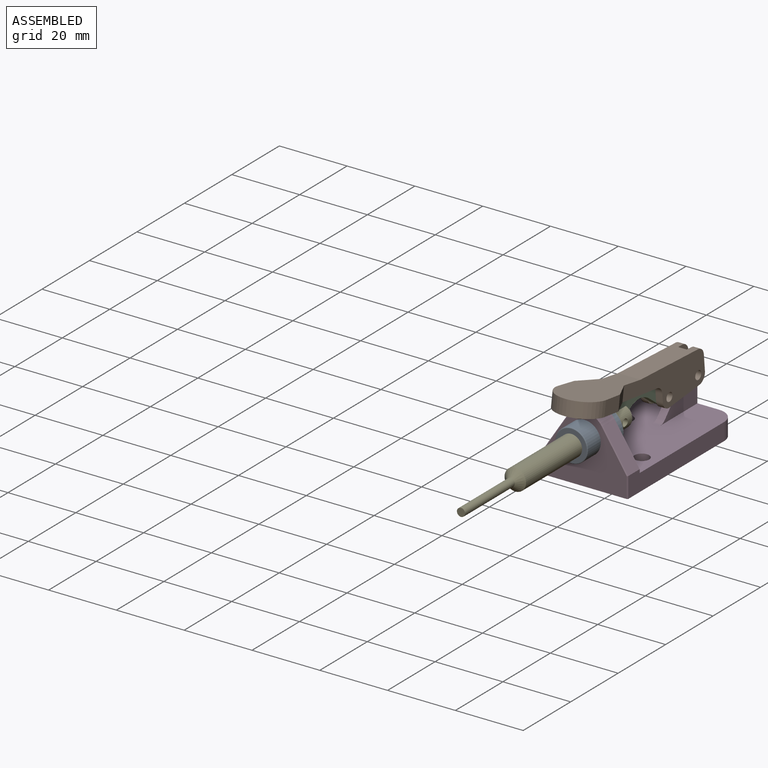
[diagram: assembled view]
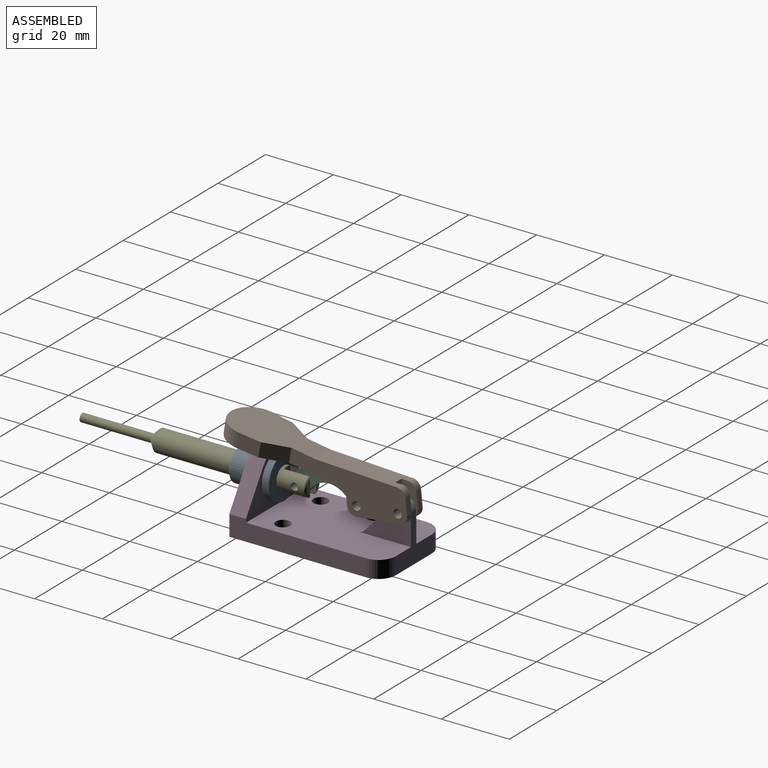
[diagram: assembled view, second angle]
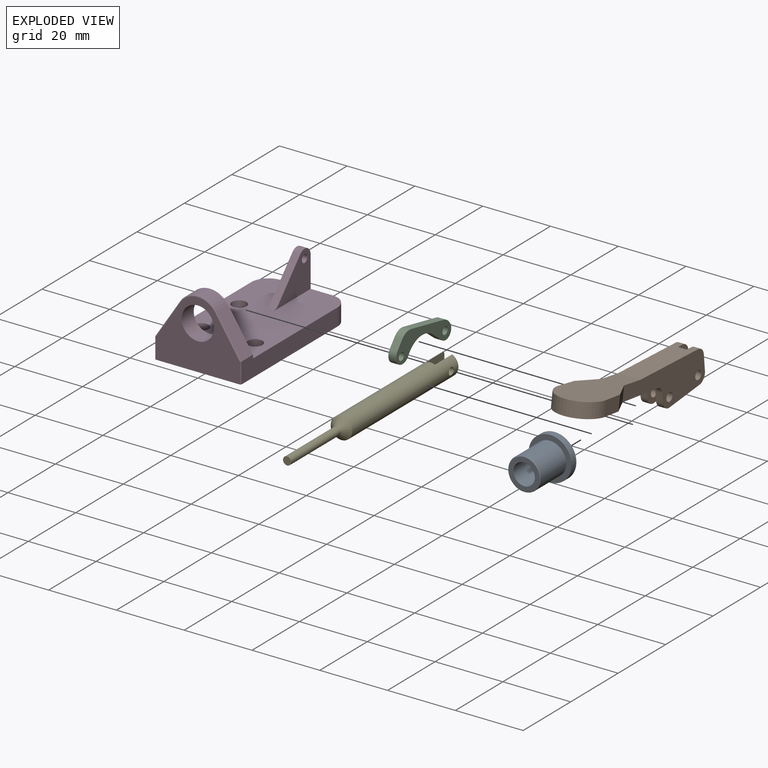
[diagram: exploded view]
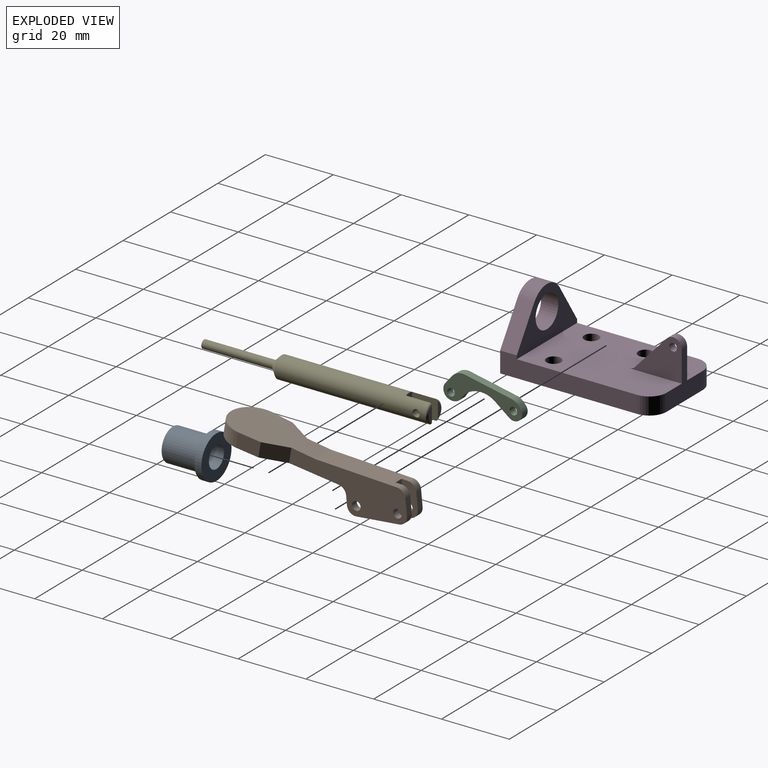
[diagram: exploded view, second angle]
ASSEMBLY  parts=5 mates=8
PART A: 7 faces, bbox 12.7x13x12.7 mm
  f0: cylinder r=3.17mm len=12.95mm, axis (0,1,0), area 258.4mm2, adj f2,f5
  f1: cylinder r=6.35mm len=12.7mm, axis (0,1,0), area 81.1mm2, adj f2,f3
  f2: plane 12.7x12.7mm, normal (0,-1,0), area 95mm2, adj f0,f1
  f3: plane 12.7x12.7mm, normal (0,1,0), area 54.7mm2, adj f1,f4
  f4: cylinder r=4.79mm len=10.67mm, axis (0,-1,0), area 320.9mm2, adj f3,f6
  f5: plane 9.07x9.07mm, normal (0,1,0), area 32.9mm2, adj f0,f6
  f6: torus R=4.53mm, axis (0,1,0), area 11.8mm2, adj f4,f5
PART B: 34 faces, bbox 14.2x53.8x20.2 mm
  f0: plane 12.7x2.03mm, normal (0,0,-1), area 25.8mm2, adj f3,f13,f27,f29
  f1: plane 2.55x2.03mm, normal (0,1,0), area 5.2mm2, adj f2,f3,f27,f29
  f2: cylinder r=2.54mm len=2.48mm, axis (-1,0,0), area 7mm2, adj f1,f15,f27,f29
  f3: cylinder r=2.54mm len=2.54mm, axis (-1,0,0), area 8.1mm2, adj f0,f1,f27,f29
  f4: plane 4.15x2.54mm, normal (0,-1,0), area 10.6mm2, adj f8,f29,f30,f33
  f5: cylinder r=1.27mm len=2.54mm, axis (1,0,0), area 16.2mm2, adj f27,f29
  f6: cylinder r=1.27mm len=2.54mm, axis (1,0,0), area 16.2mm2, adj f27,f29
  f7: plane 12.7x2.03mm, normal (0,0,-1), area 25.8mm2, adj f14,f19,f24,f30
  f8: plane 23.88x6.6mm, normal (0,-0.14,0.99), area 154.5mm2, adj f4,f9,f10,f18,f24,f27,f29,f30
  f9: cylinder r=2.54mm len=2.51mm, axis (-1,0,0), area 7.4mm2, adj f8,f11,f27,f29
  f10: cylinder r=2.54mm len=2.51mm, axis (-1,0,0), area 7.4mm2, adj f8,f12,f24,f30
  f11: plane 4.66x2.03mm, normal (0,-1,0), area 9.5mm2, adj f9,f13,f27,f29
  f12: plane 4.66x2.03mm, normal (0,-1,0), area 9.5mm2, adj f10,f14,f24,f30
  f13: cylinder r=2.54mm len=2.54mm, axis (-1,0,0), area 8.1mm2, adj f0,f11,f27,f29
  f14: cylinder r=2.54mm len=2.54mm, axis (-1,0,0), area 8.1mm2, adj f7,f12,f24,f30
  f15: plane 14.86x7.13mm, normal (0,0.22,-0.98), area 83.6mm2, adj f2,f17,f20,f23,f24,f27,f28,f29
  f16: plane 2.55x2.03mm, normal (0,1,0), area 5.2mm2, adj f17,f19,f24,f30
  f17: cylinder r=2.54mm len=2.48mm, axis (-1,0,0), area 7mm2, adj f15,f16,f24,f30
  f18: cylinder r=2.54mm len=6.6mm, axis (-1,0,0), area 1.9mm2, adj f8,f21,f24,f27
  f19: cylinder r=2.54mm len=2.54mm, axis (-1,0,0), area 8.1mm2, adj f7,f16,f24,f30
  f20: plane 19.16x14.22mm, normal (0,0.25,-0.97), area 233.8mm2, adj f15,f22,f23,f25,f26,f28
  f21: plane 26.34x14.22mm, normal (0,-0.25,0.97), area 283mm2, adj f18,f22,f23,f24,f25,f26,f27,f28
  f22: cylinder r=7.11mm len=14.22mm, axis (0,-0.25,0.97), area 96.5mm2, adj f20,f21,f25,f26
  f23: plane 7.58x5.86mm, normal (0.89,-0.44,-0.12), area 32.6mm2, adj f15,f20,f21,f24,f25
  f24: plane 34.12x14.99mm, normal (1,0,0), area 246.6mm2, adj f7,f8,f10,f12,f14,f15,f16,f17
  f25: plane 7.39x5.83mm, normal (1,-0.05,-0.01), area 28.1mm2, adj f20,f21,f22,f23
  f26: plane 7.39x5.83mm, normal (-1,-0.05,-0.01), area 28.1mm2, adj f20,f21,f22,f28
  f27: plane 34.12x14.99mm, normal (-1,0,0), area 246.6mm2, adj f0,f1,f2,f3,f5,f6,f8,f9
  f28: plane 7.58x5.86mm, normal (-0.89,-0.44,-0.12), area 32.6mm2, adj f15,f20,f21,f26,f27
  f29: plane 26.37x9.99mm, normal (1,0,0), area 123mm2, adj f0,f1,f2,f3,f4,f5,f6,f8
  f30: plane 26.37x9.99mm, normal (-1,0,0), area 123mm2, adj f4,f7,f8,f10,f12,f14,f15,f16
  f31: cylinder r=1.27mm len=2.54mm, axis (1,0,0), area 16.2mm2, adj f24,f30
  f32: cylinder r=1.27mm len=2.54mm, axis (1,0,0), area 16.2mm2, adj f24,f30
  f33: plane 22.31x3.23mm, normal (0,0.14,-0.99), area 57.3mm2, adj f4,f15,f29,f30
PART C: 14 faces, bbox 23.3x2.3x8.5 mm
  f0: cylinder r=3.81mm len=3.68mm, axis (0,1,0), area 9.4mm2, adj f1,f10,f11,f12
  f1: plane 2.48x2.29mm, normal (-0.77,0,0.64), area 7.3mm2, adj f0,f11,f12,f13
  f2: cylinder r=3.17mm len=3.2mm, axis (0,1,0), area 7.8mm2, adj f3,f11,f12,f13
  f3: cylinder r=6.97mm len=10.62mm, axis (0,1,0), area 28.4mm2, adj f2,f4,f11,f12
  f4: plane 3.93x3.01mm, normal (-0.61,0,-0.79), area 11.3mm2, adj f3,f5,f11,f12
  f5: cylinder r=2.39mm len=3.85mm, axis (0,1,0), area 15.3mm2, adj f4,f6,f11,f12
  f6: plane 2.29x0.78mm, normal (0.75,0,0.66), area 2.3mm2, adj f5,f7,f11,f12
  f7: cylinder r=3.81mm len=2.29mm, axis (0,1,0), area 5.8mm2, adj f6,f10,f11,f12
  f8: cylinder r=1.12mm len=2.29mm, axis (0,1,0), area 16.1mm2, adj f11,f12
  f9: cylinder r=1.12mm len=2.29mm, axis (0,1,0), area 16.1mm2, adj f11,f12
  f10: plane 13.79x2.72mm, normal (0.19,0,0.98), area 32.1mm2, adj f0,f7,f11,f12
  f11: plane 23.29x8.5mm, normal (0,-1,0), area 90.8mm2, adj f0,f1,f2,f3,f4,f5,f6,f7
  f12: plane 23.29x8.5mm, normal (0,1,0), area 90.8mm2, adj f0,f1,f2,f3,f4,f5,f6,f7
  f13: cylinder r=2.54mm len=4.01mm, axis (0,1,0), area 11.2mm2, adj f1,f2,f11,f12
PART D: 27 faces, bbox 25.4x45.7x20.3 mm
  f0: plane 40.39x6.1mm, normal (-1,0,0), area 210.1mm2, adj f2,f3,f6,f8,f15,f19
  f1: plane 24.89x20.07mm, normal (0,-1,0), area 296.1mm2, adj f3,f5,f8,f16,f24,f25,f26
  f2: plane 25.4x15.24mm, normal (0,1,0), area 180.1mm2, adj f0,f4,f6,f16,f17,f18,f19
  f3: plane 6.1x0.25mm, normal (-0.71,-0.71,0), area 2.2mm2, adj f0,f1,f8,f26
  f4: plane 40.39x6.1mm, normal (1,0,0), area 210.1mm2, adj f2,f5,f6,f8,f14,f17
  f5: plane 6.1x0.25mm, normal (0.71,-0.71,0), area 2.2mm2, adj f1,f4,f8,f24
  f6: plane 40.64x25.4mm, normal (0,0,1), area 941.6mm2, adj f0,f2,f4,f7,f11,f12,f13,f14
  f7: plane 15.24x14.22mm, normal (0,1,0), area 98.3mm2, adj f6,f8,f10,f11,f12,f14,f15
  f8: plane 45.72x25.4mm, normal (0,0,-1), area 1106.2mm2, adj f0,f1,f3,f4,f5,f7,f14,f15
  f9: plane 10.06x9.32mm, normal (0,-0.73,0.68), area 31.3mm2, adj f10,f11,f12,f13
  f10: cylinder r=2.54mm len=4.4mm, axis (-1,0,0), area 13.9mm2, adj f7,f9,f11,f12
  f11: plane 15.59x11.68mm, normal (1,0,0), area 100.4mm2, adj f6,f7,f9,f10,f13,f23
  f12: plane 15.59x11.68mm, normal (-1,0,0), area 100.4mm2, adj f6,f7,f9,f10,f13,f23
  f13: cylinder r=2.54mm len=2.29mm, axis (-1,0,0), area 4.8mm2, adj f6,f9,f11,f12
  f14: cylinder r=5.08mm len=5.08mm, axis (0,0,-1), area 40.5mm2, adj f4,f6,f7,f8
  f15: cylinder r=5.08mm len=5.08mm, axis (0,0,1), area 40.5mm2, adj f0,f6,f7,f8
  f16: cylinder r=4.78mm len=9.55mm, axis (0,1,0), area 152.4mm2, adj f1,f2
  f17: plane 11.45x7.45mm, normal (0.84,0,0.55), area 65.9mm2, adj f2,f4,f18,f24
  f18: cylinder r=6.35mm len=10.64mm, axis (0,1,0), area 60.9mm2, adj f2,f17,f19,f25
  f19: plane 11.23x7.31mm, normal (-0.84,0,0.55), area 64.7mm2, adj f0,f2,f18,f26
  f20: cylinder r=2.16mm len=5.08mm, axis (0,0,1), area 68.9mm2, adj f6,f8
  f21: cylinder r=2.16mm len=5.08mm, axis (0,0,1), area 68.9mm2, adj f6,f8
  f22: cylinder r=2.16mm len=5.08mm, axis (0,0,1), area 68.9mm2, adj f6,f8
  f23: cylinder r=1.14mm len=2.29mm, axis (-1,0,0), area 16.4mm2, adj f11,f12
  f24: plane 11.52x7.66mm, normal (0.59,-0.71,0.39), area 4.9mm2, adj f1,f5,f17,f25
  f25: cone r=6.1mm half-angle=45deg, axis (0,1,0), area 4.4mm2, adj f1,f18,f24,f26
  f26: plane 11.3x7.52mm, normal (-0.59,-0.71,0.39), area 4.8mm2, adj f1,f3,f19,f25
PART E: 13 faces, bbox 6.9x68.1x6.4 mm
  f0: plane 4.4x1.27mm, normal (0,-1,0), area 4mm2, adj f3,f10
  f1: cylinder r=3.17mm len=44.55mm, axis (0,-1,0), area 844.8mm2, adj f2,f3,f7,f8,f9,f10,f11,f12
  f2: torus R=2.54mm, axis (0,1,0), area 6.6mm2, adj f1,f4,f9
  f3: torus R=2.54mm, axis (0,1,0), area 6.6mm2, adj f0,f1,f10
  f4: plane 4.4x1.27mm, normal (0,-1,0), area 4mm2, adj f2,f9
  f5: plane 2.41x2.41mm, normal (0,1,0), area 4.6mm2, adj f6
  f6: cylinder r=1.21mm len=20.93mm, axis (0,-1,0), area 158.7mm2, adj f5,f7
  f7: cone r=1.21mm half-angle=45.2deg, axis (0,-1,0), area 38.2mm2, adj f1,f6
  f8: plane 6.35x2.54mm, normal (0,-1,0), area 15.7mm2, adj f1,f9,f10
  f9: plane 7.62x5.82mm, normal (1,0,0), area 40.5mm2, adj f1,f2,f4,f8,f12
  f10: plane 7.62x5.82mm, normal (-1,0,0), area 40.5mm2, adj f0,f1,f3,f8,f11
  f11: cylinder r=1.08mm len=2.16mm, axis (1,0,0), area 12.3mm2, adj f1,f10
  f12: cylinder r=1.08mm len=2.16mm, axis (1,0,0), area 12.3mm2, adj f1,f9
PLACE A rot(axis=(0,0,1),180deg) t=(774.1,5.33,13)mm
PLACE B rot(axis=(0,0.05,-1),180deg) t=(781.21,46.23,11.59)mm
PLACE C rot(axis=(0,0,1),90deg) t=(772.83,9.92,9.16)mm
PLACE D t=(786.8,0,0)mm
PLACE E rot(axis=(0,0,1),180deg) t=(774.1,15.99,13)mm
MATE planar B.f9 <-> D.f11  axis (-1,0,0) through (775.37,43,18.51)mm
MATE cylindrical D.f23 <-> B.f5  axis (1,0,0) through (775.37,43.18,14.1)mm
MATE slider E.f1 <-> A.f0  axis (0,1,0) through (774.1,-6.92,13)mm
MATE planar B.f30 <-> C.f12  axis (1,0,0) through (772.83,28.29,12.38)mm
MATE cylindrical C.f8 <-> E.f11  axis (-1,0,0) through (773.97,12.63,13)mm
MATE planar D.f2 <-> A.f1  axis (0,1,0) through (768.71,5.08,17.32)mm
MATE cylindrical C.f9 <-> B.f6  axis (-1,0,0) through (772.83,31.04,12.91)mm
MATE slider A.f4 <-> D.f16  axis (0,1,0) through (774.1,0,13)mm
